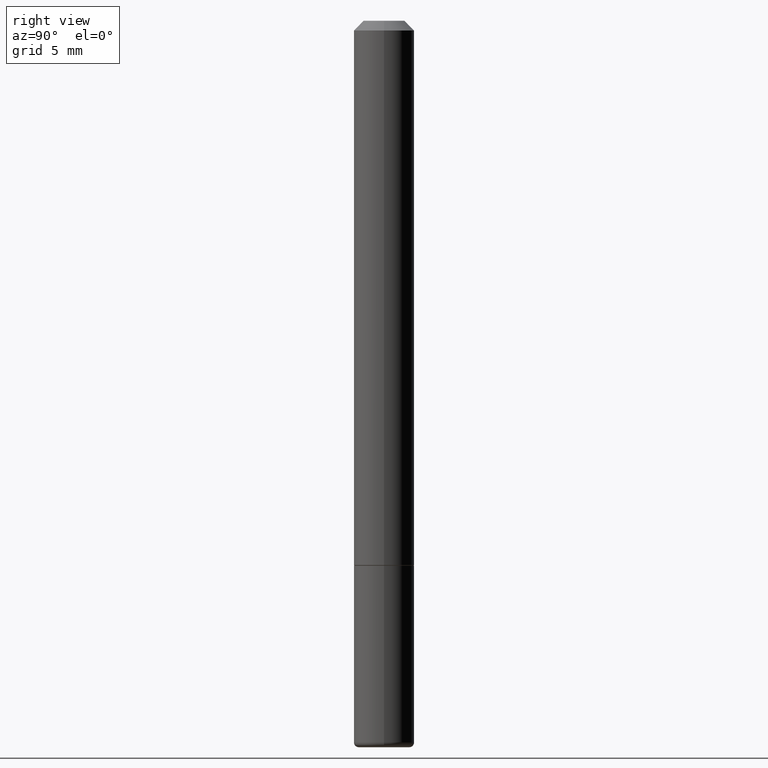
[diagram: clean part render]
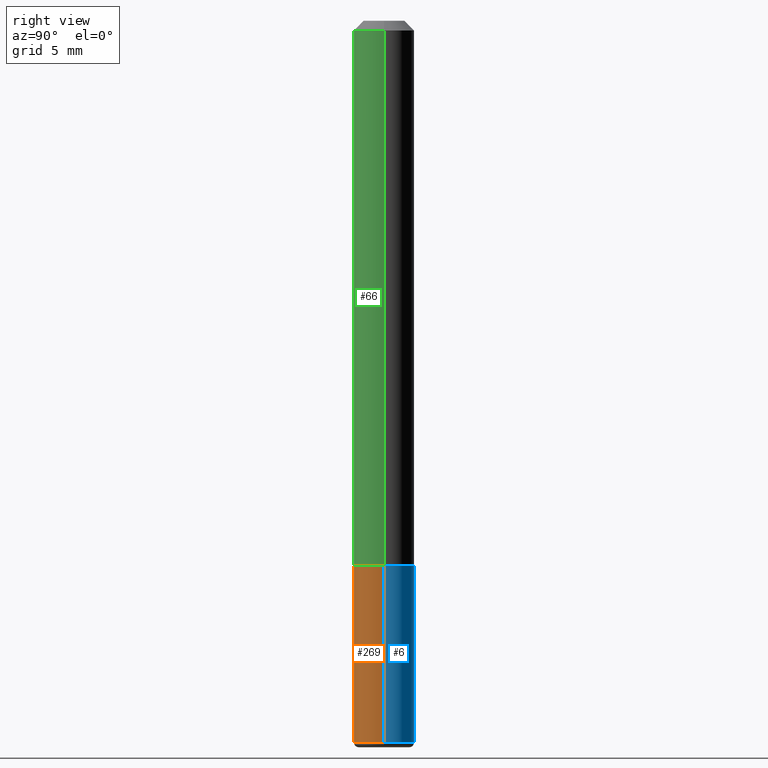
[diagram: same view with three faces highlighted in distinct colors, each labeled with its STEP entity id]
A machine part, right view with three faces highlighted in distinct colors.
Their STEP definitions:

[orange] entity #269 — the highlighted cylindrical surface (edge-blend (fillet) strip) has radius 1.5875 mm, axis along (-0, 0, 1).
#12 = EDGE_CURVE ( 'NONE', #308, #286, #209, .T. ) ;
#19 = CARTESIAN_POINT ( 'NONE',  ( 0.06249999999999990286, -5.638742362231678986E-15, -1.490000000000000213 ) ) ;
#31 = CARTESIAN_POINT ( 'NONE',  ( 2.751152406958279232E-29, -3.927916506198539224E-15, -1.125000000000000222 ) ) ;
#33 = ORIENTED_EDGE ( 'NONE', *, *, #273, .T. ) ;
#45 = VECTOR ( 'NONE', #214, 39.37007874015748143 ) ;
#53 = FACE_OUTER_BOUND ( 'NONE', #364, .T. ) ;
#55 = DIRECTION ( 'NONE',  ( -2.445468806185136597E-29, 3.491481338843145583E-15, 1.000000000000000000 ) ) ;
#79 = AXIS2_PLACEMENT_3D ( 'NONE', #31, #178, #280 ) ;
#80 = EDGE_CURVE ( 'NONE', #373, #308, #148, .T. ) ;
#83 = DIRECTION ( 'NONE',  ( 1.000000000000000000, -6.982962677686266711E-15, 4.876176775795935793E-29 ) ) ;
#96 = CARTESIAN_POINT ( 'NONE',  ( -0.06249999999999990286, -4.758217985026225489E-15, -1.490000000000000213 ) ) ;
#102 = EDGE_CURVE ( 'NONE', #300, #286, #128, .T. ) ;
#110 = CARTESIAN_POINT ( 'NONE',  ( 0.000000000000000000, 0.000000000000000000, 0.000000000000000000 ) ) ;
#123 = CARTESIAN_POINT ( 'NONE',  ( 0.06250000000000000000, -4.364351673553916694E-16, 3.047610484872459871E-30 ) ) ;
#128 = LINE ( 'NONE', #123, #303 ) ;
#148 = LINE ( 'NONE', #408, #45 ) ;
#160 = DIRECTION ( 'NONE',  ( -2.445468806185136877E-29, 3.491481338843145188E-15, 1.000000000000000000 ) ) ;
#175 = AXIS2_PLACEMENT_3D ( 'NONE', #271, #55, #409 ) ;
#178 = DIRECTION ( 'NONE',  ( -2.445468806185136597E-29, 3.491481338843145583E-15, 1.000000000000000000 ) ) ;
#209 = CIRCLE ( 'NONE', #79, 0.06250000000000000000 ) ;
#214 = DIRECTION ( 'NONE',  ( -2.445468806185136877E-29, 3.491481338843145188E-15, 1.000000000000000000 ) ) ;
#239 = DIRECTION ( 'NONE',  ( -2.445468806185136597E-29, 3.491481338843145583E-15, 1.000000000000000000 ) ) ;
#269 = ADVANCED_FACE ( 'NONE', ( #53 ), #311, .T. ) ;
#271 = CARTESIAN_POINT ( 'NONE',  ( 3.643748521215853910E-29, -5.202307194876288105E-15, -1.490000000000000213 ) ) ;
#273 = EDGE_CURVE ( 'NONE', #373, #300, #389, .T. ) ;
#274 = AXIS2_PLACEMENT_3D ( 'NONE', #110, #239, #83 ) ;
#280 = DIRECTION ( 'NONE',  ( 1.000000000000000000, -6.982962677686262766E-15, 0.000000000000000000 ) ) ;
#286 = VERTEX_POINT ( 'NONE', #371 ) ;
#300 = VERTEX_POINT ( 'NONE', #19 ) ;
#303 = VECTOR ( 'NONE', #160, 39.37007874015748143 ) ;
#306 = ORIENTED_EDGE ( 'NONE', *, *, #80, .F. ) ;
#308 = VERTEX_POINT ( 'NONE', #350 ) ;
#311 = CYLINDRICAL_SURFACE ( 'NONE', #274, 0.06250000000000000000 ) ;
#350 = CARTESIAN_POINT ( 'NONE',  ( -0.06250000000000000000, -4.121022640687350654E-15, -1.125000000000000222 ) ) ;
#364 = EDGE_LOOP ( 'NONE', ( #306, #33, #393, #368 ) ) ;
#368 = ORIENTED_EDGE ( 'NONE', *, *, #12, .F. ) ;
#371 = CARTESIAN_POINT ( 'NONE',  ( 0.06250000000000000000, -4.364351673553930894E-15, -1.125000000000000222 ) ) ;
#373 = VERTEX_POINT ( 'NONE', #96 ) ;
#389 = CIRCLE ( 'NONE', #175, 0.06250000000000000000 ) ;
#393 = ORIENTED_EDGE ( 'NONE', *, *, #102, .T. ) ;
#408 = CARTESIAN_POINT ( 'NONE',  ( -0.06250000000000000000, 4.440892098500626162E-16, -3.074334431409316114E-30 ) ) ;
#409 = DIRECTION ( 'NONE',  ( 1.000000000000000000, -6.982962677686262766E-15, 0.000000000000000000 ) ) ;

[blue] entity #6 — the highlighted cylindrical surface (edge-blend (fillet) strip) has radius 1.5875 mm, axis along (-0, 0, 1).
#6 = ADVANCED_FACE ( 'NONE', ( #376 ), #415, .T. ) ;
#8 = EDGE_CURVE ( 'NONE', #286, #308, #151, .T. ) ;
#9 = ORIENTED_EDGE ( 'NONE', *, *, #80, .T. ) ;
#19 = CARTESIAN_POINT ( 'NONE',  ( 0.06249999999999990286, -5.638742362231678986E-15, -1.490000000000000213 ) ) ;
#21 = CARTESIAN_POINT ( 'NONE',  ( 0.000000000000000000, 0.000000000000000000, 0.000000000000000000 ) ) ;
#45 = VECTOR ( 'NONE', #214, 39.37007874015748143 ) ;
#80 = EDGE_CURVE ( 'NONE', #373, #308, #148, .T. ) ;
#96 = CARTESIAN_POINT ( 'NONE',  ( -0.06249999999999990286, -4.758217985026225489E-15, -1.490000000000000213 ) ) ;
#101 = ORIENTED_EDGE ( 'NONE', *, *, #154, .T. ) ;
#102 = EDGE_CURVE ( 'NONE', #300, #286, #128, .T. ) ;
#104 = ORIENTED_EDGE ( 'NONE', *, *, #8, .F. ) ;
#121 = CARTESIAN_POINT ( 'NONE',  ( 2.751152406958279232E-29, -3.927916506198539224E-15, -1.125000000000000222 ) ) ;
#123 = CARTESIAN_POINT ( 'NONE',  ( 0.06250000000000000000, -4.364351673553916694E-16, 3.047610484872459871E-30 ) ) ;
#128 = LINE ( 'NONE', #123, #303 ) ;
#144 = DIRECTION ( 'NONE',  ( 1.000000000000000000, -6.982962677686262766E-15, 0.000000000000000000 ) ) ;
#148 = LINE ( 'NONE', #408, #45 ) ;
#151 = CIRCLE ( 'NONE', #410, 0.06250000000000000000 ) ;
#154 = EDGE_CURVE ( 'NONE', #300, #373, #236, .T. ) ;
#160 = DIRECTION ( 'NONE',  ( -2.445468806185136877E-29, 3.491481338843145188E-15, 1.000000000000000000 ) ) ;
#164 = ORIENTED_EDGE ( 'NONE', *, *, #102, .F. ) ;
#211 = DIRECTION ( 'NONE',  ( 1.000000000000000000, -6.982962677686266711E-15, 4.876176775795935793E-29 ) ) ;
#214 = DIRECTION ( 'NONE',  ( -2.445468806185136877E-29, 3.491481338843145188E-15, 1.000000000000000000 ) ) ;
#236 = CIRCLE ( 'NONE', #259, 0.06250000000000000000 ) ;
#241 = DIRECTION ( 'NONE',  ( -2.445468806185136597E-29, 3.491481338843145583E-15, 1.000000000000000000 ) ) ;
#243 = AXIS2_PLACEMENT_3D ( 'NONE', #21, #321, #211 ) ;
#246 = CARTESIAN_POINT ( 'NONE',  ( 3.643748521215853910E-29, -5.202307194876288105E-15, -1.490000000000000213 ) ) ;
#250 = DIRECTION ( 'NONE',  ( 1.000000000000000000, -6.982962677686262766E-15, 0.000000000000000000 ) ) ;
#259 = AXIS2_PLACEMENT_3D ( 'NONE', #246, #382, #250 ) ;
#286 = VERTEX_POINT ( 'NONE', #371 ) ;
#300 = VERTEX_POINT ( 'NONE', #19 ) ;
#303 = VECTOR ( 'NONE', #160, 39.37007874015748143 ) ;
#308 = VERTEX_POINT ( 'NONE', #350 ) ;
#321 = DIRECTION ( 'NONE',  ( -2.445468806185136597E-29, 3.491481338843145583E-15, 1.000000000000000000 ) ) ;
#350 = CARTESIAN_POINT ( 'NONE',  ( -0.06250000000000000000, -4.121022640687350654E-15, -1.125000000000000222 ) ) ;
#356 = EDGE_LOOP ( 'NONE', ( #101, #9, #104, #164 ) ) ;
#371 = CARTESIAN_POINT ( 'NONE',  ( 0.06250000000000000000, -4.364351673553930894E-15, -1.125000000000000222 ) ) ;
#373 = VERTEX_POINT ( 'NONE', #96 ) ;
#376 = FACE_OUTER_BOUND ( 'NONE', #356, .T. ) ;
#382 = DIRECTION ( 'NONE',  ( -2.445468806185136597E-29, 3.491481338843145583E-15, 1.000000000000000000 ) ) ;
#408 = CARTESIAN_POINT ( 'NONE',  ( -0.06250000000000000000, 4.440892098500626162E-16, -3.074334431409316114E-30 ) ) ;
#410 = AXIS2_PLACEMENT_3D ( 'NONE', #121, #241, #144 ) ;
#415 = CYLINDRICAL_SURFACE ( 'NONE', #243, 0.06250000000000000000 ) ;

[green] entity #66 — the highlighted cylindrical surface (edge-blend (fillet) strip) has radius 1.5875 mm, axis along (-0, 0, 1).
#7 = CARTESIAN_POINT ( 'NONE',  ( 0.06250000000000001388, -4.986107516375840208E-16, -0.02000000000000006981 ) ) ;
#13 = ORIENTED_EDGE ( 'NONE', *, *, #255, .T. ) ;
#40 = AXIS2_PLACEMENT_3D ( 'NONE', #88, #62, #152 ) ;
#52 = VERTEX_POINT ( 'NONE', #277 ) ;
#62 = DIRECTION ( 'NONE',  ( -2.445468806185136597E-29, 3.491481338843145583E-15, 1.000000000000000000 ) ) ;
#66 = ADVANCED_FACE ( 'NONE', ( #249 ), #283, .T. ) ;
#70 = AXIS2_PLACEMENT_3D ( 'NONE', #385, #316, #217 ) ;
#74 = EDGE_CURVE ( 'NONE', #197, #52, #225, .T. ) ;
#87 = DIRECTION ( 'NONE',  ( -2.445468806185136597E-29, 3.491481338843145583E-15, 1.000000000000000000 ) ) ;
#88 = CARTESIAN_POINT ( 'NONE',  ( 4.890937612370289799E-31, -6.982962677686315028E-17, -0.02000000000000006981 ) ) ;
#94 = CIRCLE ( 'NONE', #40, 0.06250000000000001388 ) ;
#120 = LINE ( 'NONE', #161, #157 ) ;
#137 = ORIENTED_EDGE ( 'NONE', *, *, #173, .F. ) ;
#152 = DIRECTION ( 'NONE',  ( 1.000000000000000000, -6.982962677686267499E-15, 0.000000000000000000 ) ) ;
#157 = VECTOR ( 'NONE', #330, 39.37007874015748143 ) ;
#161 = CARTESIAN_POINT ( 'NONE',  ( -0.06250000000000008327, 4.440892098500632078E-16, -3.074334431409319967E-30 ) ) ;
#173 = EDGE_CURVE ( 'NONE', #343, #204, #94, .T. ) ;
#197 = VERTEX_POINT ( 'NONE', #394 ) ;
#201 = VECTOR ( 'NONE', #367, 39.37007874015748143 ) ;
#204 = VERTEX_POINT ( 'NONE', #7 ) ;
#217 = DIRECTION ( 'NONE',  ( 1.000000000000000000, -6.982962677686266711E-15, 4.876176775795935793E-29 ) ) ;
#225 = CIRCLE ( 'NONE', #386, 0.06250000000000015266 ) ;
#231 = ORIENTED_EDGE ( 'NONE', *, *, #355, .F. ) ;
#232 = CARTESIAN_POINT ( 'NONE',  ( 0.06250000000000008327, -4.364351673553922611E-16, 3.047610484872464074E-30 ) ) ;
#249 = FACE_OUTER_BOUND ( 'NONE', #265, .T. ) ;
#255 = EDGE_CURVE ( 'NONE', #52, #204, #301, .T. ) ;
#265 = EDGE_LOOP ( 'NONE', ( #231, #309, #13, #137 ) ) ;
#277 = CARTESIAN_POINT ( 'NONE',  ( 0.06250000000000015266, -4.360860192215089464E-15, -1.124000000000000332 ) ) ;
#283 = CYLINDRICAL_SURFACE ( 'NONE', #70, 0.06250000000000008327 ) ;
#301 = LINE ( 'NONE', #232, #201 ) ;
#309 = ORIENTED_EDGE ( 'NONE', *, *, #74, .T. ) ;
#316 = DIRECTION ( 'NONE',  ( -2.445468806185136597E-29, 3.491481338843145583E-15, 1.000000000000000000 ) ) ;
#330 = DIRECTION ( 'NONE',  ( -2.445468806185136877E-29, 3.491481338843145188E-15, 1.000000000000000000 ) ) ;
#343 = VERTEX_POINT ( 'NONE', #398 ) ;
#355 = EDGE_CURVE ( 'NONE', #197, #343, #120, .T. ) ;
#367 = DIRECTION ( 'NONE',  ( -2.445468806185136877E-29, 3.491481338843145188E-15, 1.000000000000000000 ) ) ;
#379 = DIRECTION ( 'NONE',  ( 1.000000000000000000, -6.982962677686269077E-15, 0.000000000000000000 ) ) ;
#385 = CARTESIAN_POINT ( 'NONE',  ( 0.000000000000000000, 0.000000000000000000, 0.000000000000000000 ) ) ;
#386 = AXIS2_PLACEMENT_3D ( 'NONE', #406, #87, #379 ) ;
#394 = CARTESIAN_POINT ( 'NONE',  ( -0.06250000000000015266, -1.553038115968214380E-15, -1.124000000000000332 ) ) ;
#398 = CARTESIAN_POINT ( 'NONE',  ( -0.06250000000000001388, 3.666055405785286670E-16, -0.02000000000000006981 ) ) ;
#406 = CARTESIAN_POINT ( 'NONE',  ( 2.748706938152094189E-29, -3.924425024859696217E-15, -1.124000000000000332 ) ) ;